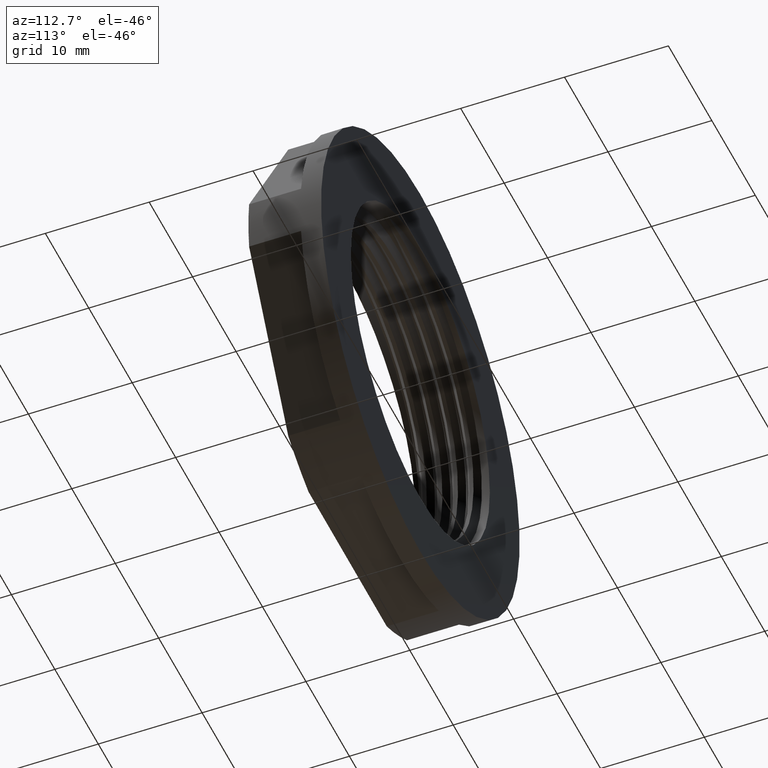
[diagram: clean part render]
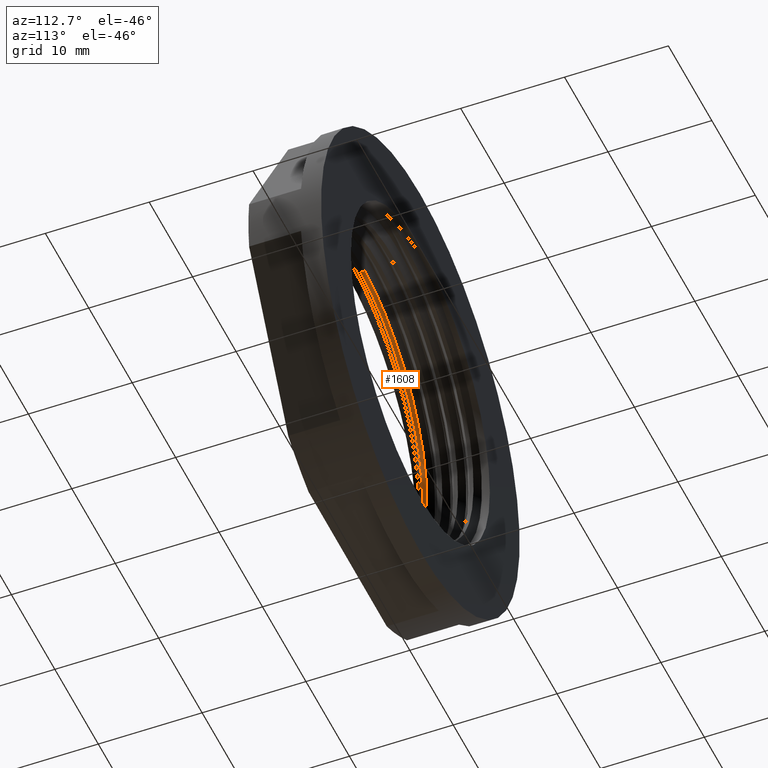
[diagram: same view with one face highlighted and labeled with its STEP entity id]
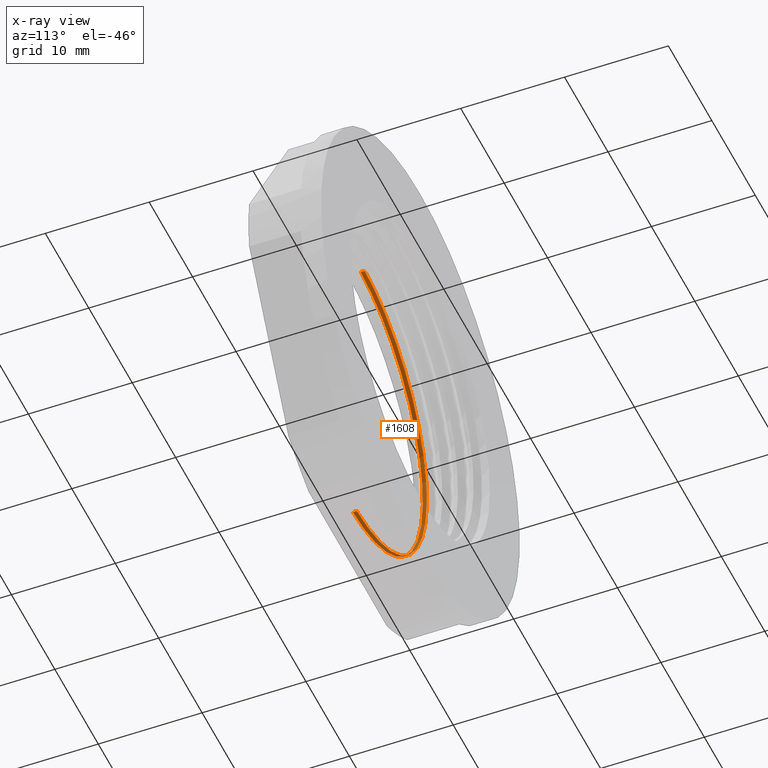
[diagram: x-ray of the same camera — body ghosted, the highlighted face saturated]
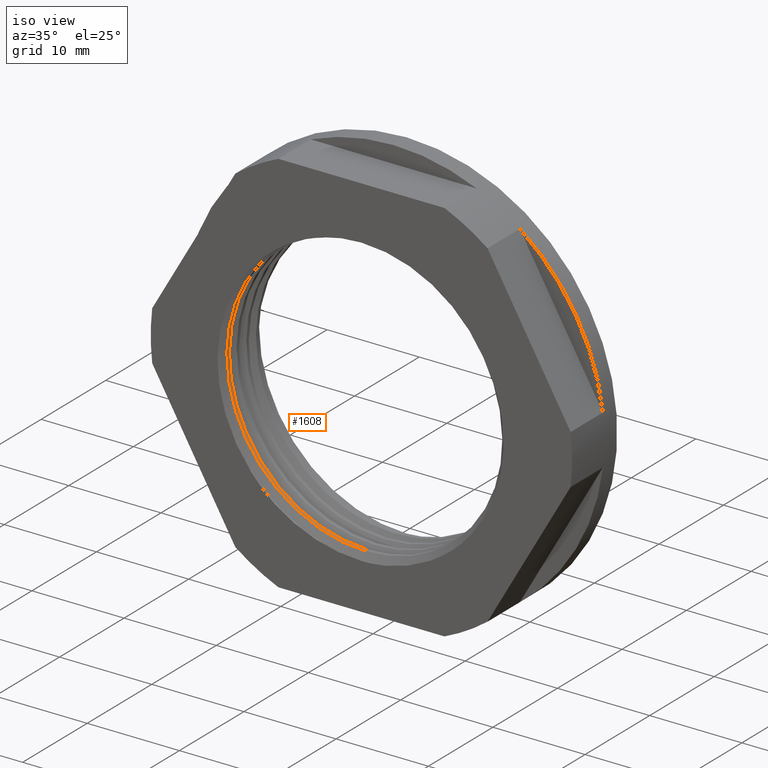
[diagram: same view with one face highlighted and labeled with its STEP entity id]
A machine part, auxiliary view. The second image highlights one B-rep face of the part: STEP entity #1608.
The next image is the same camera in x-ray: the body ghosted, the highlighted face saturated — about 29% of this face is hidden behind the body in this view.
A second angle (iso view) of the same face is appended — the face is thin or edge-on in the first view.
In plain terms, the highlighted cylindrical surface (partial cylindrical patch) has radius 15.2 mm, axis along (0, -1, 0).
Its self-contained STEP definition (entity closure, byte-faithful):
#2 = CARTESIAN_POINT ( 'NONE',  ( 0.0000000000000000000, -20.16188021535170100, 115.2000000000000300 ) ) ;
#6 = CARTESIAN_POINT ( 'NONE',  ( -1.861463134703979900E-015, -20.91188021535170100, 84.79999999999999700 ) ) ;
#21 = CARTESIAN_POINT ( 'NONE',  ( -1.861463134703979900E-015, -21.30188021535164800, 84.79999999999999700 ) ) ;
#88 = CARTESIAN_POINT ( 'NONE',  ( 0.0000000000000000000, -20.55188021535170200, 115.2000000000000300 ) ) ;
#246 = CARTESIAN_POINT ( 'NONE',  ( -1.861463134703979900E-015, -20.91188021535170100, 84.79999999999999700 ) ) ;
#247 = CARTESIAN_POINT ( 'NONE',  ( -8.775724091682313600, -20.78688021535168300, 84.79999999999998300 ) ) ;
#248 = CARTESIAN_POINT ( 'NONE',  ( -13.16358613752346200, -20.66188021535169700, 92.39999999999999100 ) ) ;
#249 = CARTESIAN_POINT ( 'NONE',  ( -17.55144818336462700, -20.53688021535169400, 100.0000000000000100 ) ) ;
#250 = CARTESIAN_POINT ( 'NONE',  ( -13.16358613752346200, -20.41188021535169700, 107.5999999999999900 ) ) ;
#251 = CARTESIAN_POINT ( 'NONE',  ( -8.775724091682313600, -20.28688021535164800, 115.1999999999999600 ) ) ;
#252 = CARTESIAN_POINT ( 'NONE',  ( 0.0000000000000000000, -20.16188021535170100, 115.2000000000000300 ) ) ;
#282 = VERTEX_POINT ( 'NONE', #6 ) ;
#293 = VERTEX_POINT ( 'NONE', #21 ) ;
#320 = VERTEX_POINT ( 'NONE', #2 ) ;
#322 = VERTEX_POINT ( 'NONE', #88 ) ;
#348 = EDGE_LOOP ( 'NONE', ( #422, #475, #437, #477 ) ) ;
#422 = ORIENTED_EDGE ( 'NONE', *, *, #1550, .T. ) ;
#437 = ORIENTED_EDGE ( 'NONE', *, *, #1569, .T. ) ;
#475 = ORIENTED_EDGE ( 'NONE', *, *, #1659, .T. ) ;
#477 = ORIENTED_EDGE ( 'NONE', *, *, #1552, .F. ) ;
#590 =( BOUNDED_CURVE ( )  B_SPLINE_CURVE ( 2, ( #670, #661, #653, #671, #663, #636, #629 ),
 .UNSPECIFIED., .F., .T. ) 
 B_SPLINE_CURVE_WITH_KNOTS ( ( 3, 2, 2, 3 ),
 ( 0.0000000000000000000, 0.01602561006831384300, 0.03205122013662811000, 0.04807683020494184900 ),
 .UNSPECIFIED. ) 
 CURVE ( )  GEOMETRIC_REPRESENTATION_ITEM ( )  RATIONAL_B_SPLINE_CURVE ( ( 1.000000000000000000, 0.8660254037844389300, 1.000000000000000000, 0.8660254037844389300, 1.000000000000000000, 0.8660254037844389300, 1.000000000000000000 ) ) 
 REPRESENTATION_ITEM ( '' )  );
#596 =( BOUNDED_CURVE ( )  B_SPLINE_CURVE ( 2, ( #246, #247, #248, #249, #250, #251, #252 ),
 .UNSPECIFIED., .F., .T. ) 
 B_SPLINE_CURVE_WITH_KNOTS ( ( 3, 2, 2, 3 ),
 ( -0.2884781811331426600, -0.2724516467666385200, -0.2564251124001338800, -0.2403985780336296600 ),
 .UNSPECIFIED. ) 
 CURVE ( )  GEOMETRIC_REPRESENTATION_ITEM ( )  RATIONAL_B_SPLINE_CURVE ( ( 1.000000000000000000, 0.8660254037844388200, 1.000000000000000000, 0.8660254037844388200, 1.000000000000000000, 0.8660254037844388200, 1.000000000000000000 ) ) 
 REPRESENTATION_ITEM ( '' )  );
#629 = CARTESIAN_POINT ( 'NONE',  ( -1.861463134703979900E-015, -21.30188021535164800, 84.79999999999999700 ) ) ;
#636 = CARTESIAN_POINT ( 'NONE',  ( -8.775724091682304700, -21.17688021535169400, 84.80000000000002600 ) ) ;
#653 = CARTESIAN_POINT ( 'NONE',  ( -13.16358613752344700, -20.80188021535164100, 107.5999999999999900 ) ) ;
#661 = CARTESIAN_POINT ( 'NONE',  ( -8.775724091682304700, -20.67688021535167000, 115.1999999999999300 ) ) ;
#663 = CARTESIAN_POINT ( 'NONE',  ( -13.16358613752344700, -21.05188021535164100, 92.39999999999999100 ) ) ;
#670 = CARTESIAN_POINT ( 'NONE',  ( 0.0000000000000000000, -20.55188021535170200, 115.2000000000000300 ) ) ;
#671 = CARTESIAN_POINT ( 'NONE',  ( -17.55144818336460900, -20.92688021535164100, 100.0000000000000100 ) ) ;
#789 = CARTESIAN_POINT ( 'NONE',  ( 0.0000000000000000000, -15.19999999999999900, 100.0000000000000000 ) ) ;
#790 = DIRECTION ( 'NONE',  ( 0.0000000000000000000, 0.0000000000000000000, -1.000000000000000000 ) ) ;
#793 = FACE_OUTER_BOUND ( 'NONE', #348, .T. ) ;
#794 = DIRECTION ( 'NONE',  ( 0.0000000000000000000, -1.000000000000000000, 0.0000000000000000000 ) ) ;
#795 = CYLINDRICAL_SURFACE ( 'NONE', #1674, 15.20000000000000500 ) ;
#1342 = CARTESIAN_POINT ( 'NONE',  ( 1.861463134703977900E-015, -15.19999999999999900, 115.2000000000000200 ) ) ;
#1345 = DIRECTION ( 'NONE',  ( 0.0000000000000000000, -1.000000000000000000, 0.0000000000000000000 ) ) ;
#1373 = LINE ( 'NONE', #1342, #1750 ) ;
#1392 = DIRECTION ( 'NONE',  ( 0.0000000000000000000, -1.000000000000000000, 0.0000000000000000000 ) ) ;
#1393 = CARTESIAN_POINT ( 'NONE',  ( 0.0000000000000000000, -15.19999999999999900, 84.79999999999999700 ) ) ;
#1418 = LINE ( 'NONE', #1393, #1788 ) ;
#1550 = EDGE_CURVE ( 'NONE', #282, #320, #596, .T. ) ;
#1552 = EDGE_CURVE ( 'NONE', #282, #293, #1418, .T. ) ;
#1569 = EDGE_CURVE ( 'NONE', #322, #293, #590, .T. ) ;
#1608 = ADVANCED_FACE ( 'NONE', ( #793 ), #795, .F. ) ;
#1659 = EDGE_CURVE ( 'NONE', #320, #322, #1373, .T. ) ;
#1674 = AXIS2_PLACEMENT_3D ( 'NONE', #789, #794, #790 ) ;
#1750 = VECTOR ( 'NONE', #1345, 1000.000000000000000 ) ;
#1788 = VECTOR ( 'NONE', #1392, 1000.000000000000000 ) ;